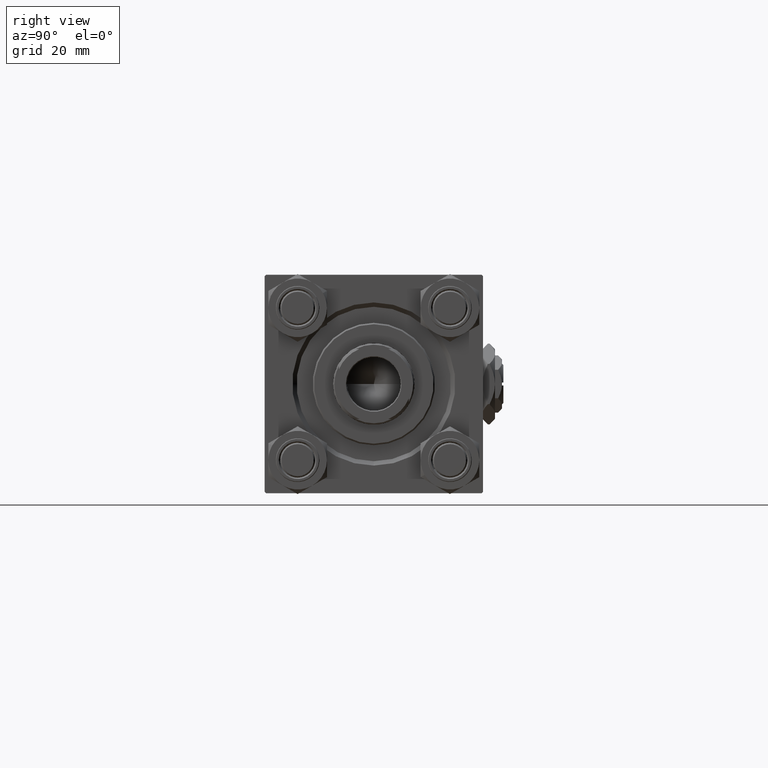
[diagram: clean part render]
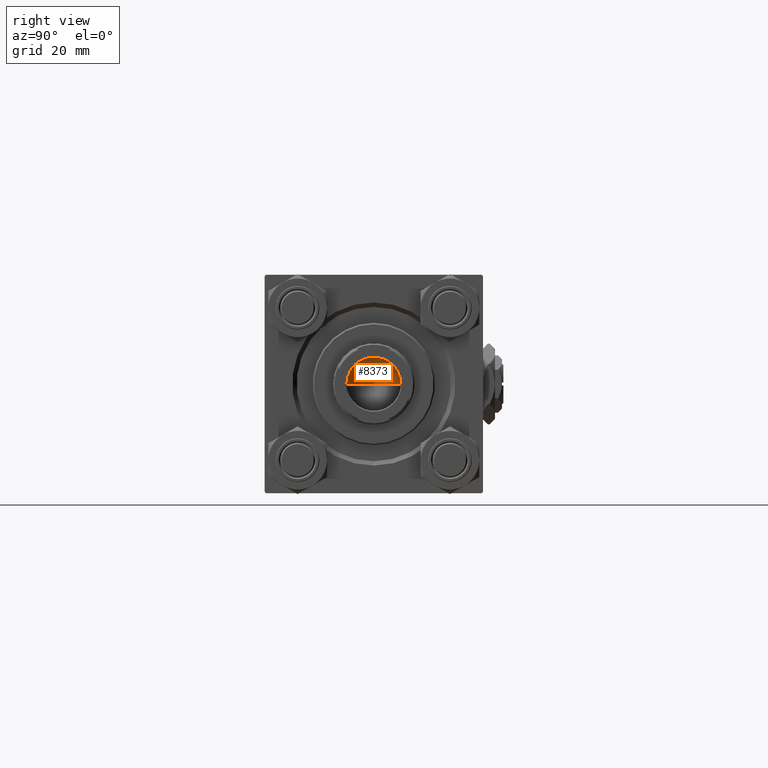
[diagram: same view with one face highlighted and labeled with its STEP entity id]
A machine part, right view. The second image highlights one B-rep face of the part: STEP entity #8373.
In plain terms, the highlighted conical surface has half-angle 59 deg.
Its self-contained STEP definition (entity closure, byte-faithful):
#2043 = DIRECTION ( 'NONE',  ( -0.000000000000000000, -0.000000000000000000, 1.000000000000000000 ) ) ;
#2426 = EDGE_CURVE ( 'NONE', #8586, #3043, #28136, .T. ) ;
#2521 = ORIENTED_EDGE ( 'NONE', *, *, #26745, .T. ) ;
#2561 = CARTESIAN_POINT ( 'NONE',  ( -9.249999999999992895, 1.132798289211300712E-15, 107.0000000000000142 ) ) ;
#3043 = VERTEX_POINT ( 'NONE', #2561 ) ;
#3969 = CARTESIAN_POINT ( 'NONE',  ( -9.249999999999992895, 1.132798289211300712E-15, 107.0000000000000142 ) ) ;
#4351 = VECTOR ( 'NONE', #22890, 1000.000000000000000 ) ;
#5377 = ORIENTED_EDGE ( 'NONE', *, *, #50471, .F. ) ;
#7711 = DIRECTION ( 'NONE',  ( -0.000000000000000000, -0.000000000000000000, 1.000000000000000000 ) ) ;
#8373 = ADVANCED_FACE ( 'NONE', ( #21990 ), #28801, .F. ) ;
#8586 = VERTEX_POINT ( 'NONE', #24066 ) ;
#11251 = ORIENTED_EDGE ( 'NONE', *, *, #2426, .T. ) ;
#13383 = CARTESIAN_POINT ( 'NONE',  ( 9.249999999999992895, 0.000000000000000000, 107.0000000000000142 ) ) ;
#18302 = CARTESIAN_POINT ( 'NONE',  ( 9.249999999999992895, 0.000000000000000000, 107.0000000000000142 ) ) ;
#21225 = CARTESIAN_POINT ( 'NONE',  ( 0.000000000000000000, 0.000000000000000000, 107.0000000000000142 ) ) ;
#21990 = FACE_OUTER_BOUND ( 'NONE', #27192, .T. ) ;
#22890 = DIRECTION ( 'NONE',  ( -0.8571673007021117785, 1.049727191138617956E-16, 0.5150380749100550437 ) ) ;
#24066 = CARTESIAN_POINT ( 'NONE',  ( -9.769621978240258809E-15, 0.000000000000000000, 101.4420392739950785 ) ) ;
#26745 = EDGE_CURVE ( 'NONE', #3043, #36931, #31779, .T. ) ;
#27192 = EDGE_LOOP ( 'NONE', ( #5377, #11251, #2521 ) ) ;
#28136 = LINE ( 'NONE', #3969, #4351 ) ;
#28801 = CONICAL_SURFACE ( 'NONE', #34629, 9.249999999999992895, 1.029744258676653423 ) ;
#29396 = DIRECTION ( 'NONE',  ( 0.8571673007021117785, 0.000000000000000000, 0.5150380749100550437 ) ) ;
#31779 = CIRCLE ( 'NONE', #50181, 9.249999999999992895 ) ;
#33412 = VECTOR ( 'NONE', #29396, 1000.000000000000000 ) ;
#34629 = AXIS2_PLACEMENT_3D ( 'NONE', #21225, #2043, #45101 ) ;
#36931 = VERTEX_POINT ( 'NONE', #18302 ) ;
#45101 = DIRECTION ( 'NONE',  ( 1.000000000000000000, 0.000000000000000000, 0.000000000000000000 ) ) ;
#47601 = CARTESIAN_POINT ( 'NONE',  ( 0.000000000000000000, 0.000000000000000000, 107.0000000000000142 ) ) ;
#50085 = LINE ( 'NONE', #13383, #33412 ) ;
#50181 = AXIS2_PLACEMENT_3D ( 'NONE', #47601, #7711, #51009 ) ;
#50471 = EDGE_CURVE ( 'NONE', #8586, #36931, #50085, .T. ) ;
#51009 = DIRECTION ( 'NONE',  ( 1.000000000000000000, 0.000000000000000000, 0.000000000000000000 ) ) ;